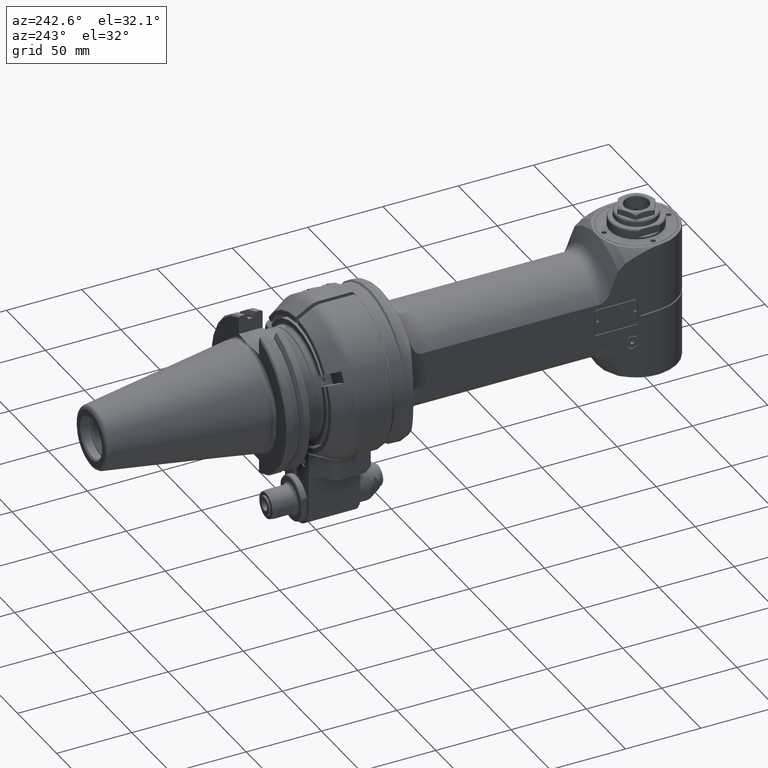
[diagram: clean part render]
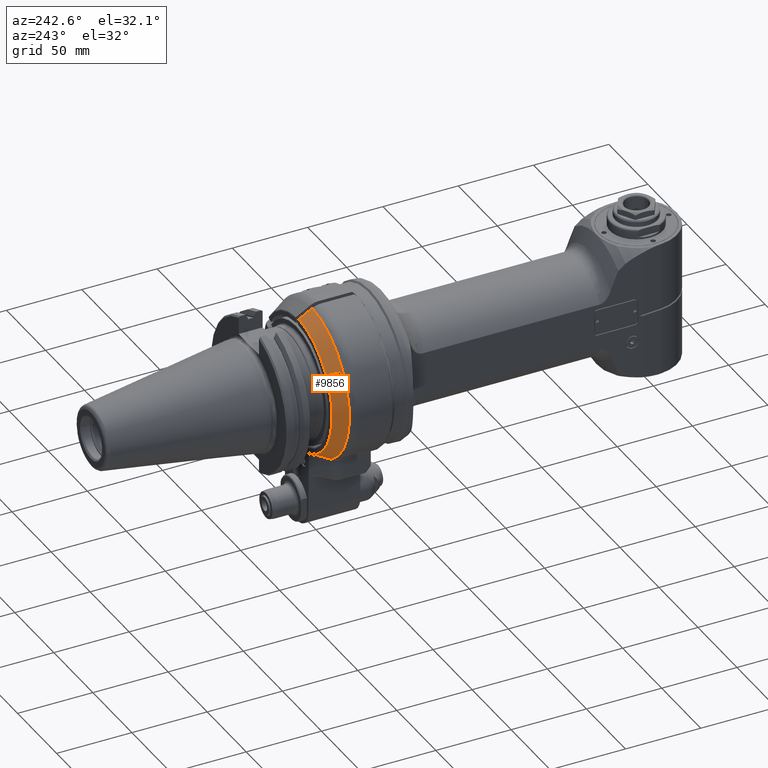
[diagram: same view with one face highlighted and labeled with its STEP entity id]
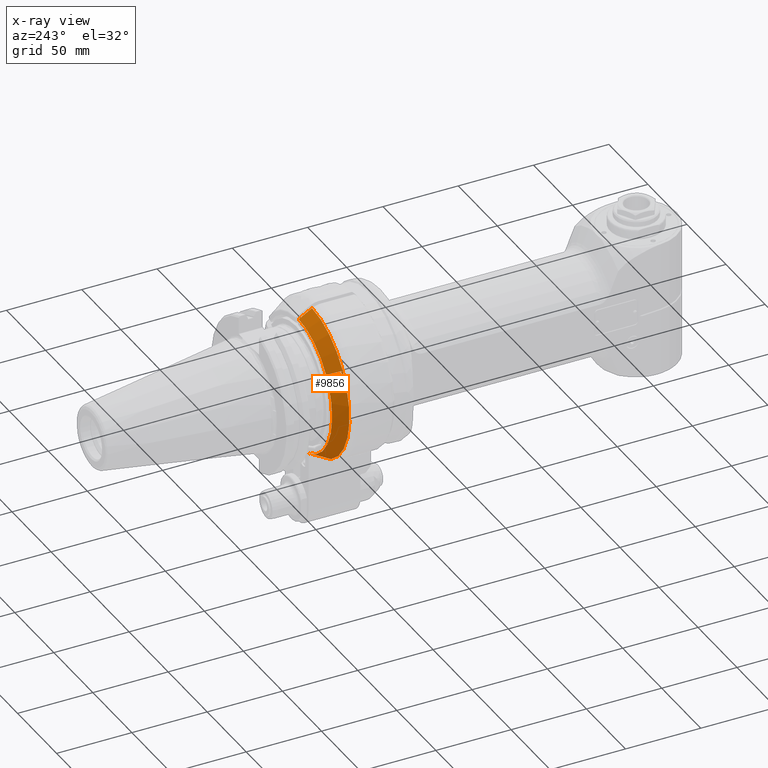
[diagram: x-ray of the same camera — body ghosted, the highlighted face saturated]
A machine part, auxiliary view. The second image highlights one B-rep face of the part: STEP entity #9856.
The next image is the same camera in x-ray: the body ghosted, the highlighted face saturated — about 0% of this face is hidden behind the body in this view.
In plain terms, the highlighted conical surface has half-angle 30 deg.
Its self-contained STEP definition (entity closure, byte-faithful):
#131=CONICAL_SURFACE('',#10899,46.84048999,0.523598775598299);
#376=(
BOUNDED_CURVE()
B_SPLINE_CURVE(2,(#18128,#18129,#18130),.UNSPECIFIED.,.F.,.F.)
B_SPLINE_CURVE_WITH_KNOTS((3,3),(2.8844916698338,4.73034462401095),
 .UNSPECIFIED.)
CURVE()
GEOMETRIC_REPRESENTATION_ITEM()
RATIONAL_B_SPLINE_CURVE((1.0329855543031,1.03049774839129,1.01131829545001))
REPRESENTATION_ITEM('')
);
#468=B_SPLINE_CURVE_WITH_KNOTS('',3,(#18200,#18201,#18202,#18203,#18204,
#18205,#18206,#18207,#18208,#18209),.UNSPECIFIED.,.F.,.F.,(4,3,3,4),(0.,
0.3333333333333,0.6666666666667,0.999997664785423),.UNSPECIFIED.);
#469=B_SPLINE_CURVE_WITH_KNOTS('',3,(#18213,#18214,#18215,#18216,#18217,
#18218,#18219,#18220,#18221,#18222),.UNSPECIFIED.,.F.,.F.,(4,3,3,4),(7.65326635698502E-6,
0.3333333333333,0.6666666666667,1.),.UNSPECIFIED.);
#470=B_SPLINE_CURVE_WITH_KNOTS('',3,(#18226,#18227,#18228,#18229,#18230,
#18231,#18232,#18233,#18234,#18235),.UNSPECIFIED.,.F.,.F.,(4,3,3,4),(0.,
0.3333333333333,0.6666666666667,0.999992871429506),.UNSPECIFIED.);
#1069=CIRCLE('',#10894,49.39230484541);
#1073=CIRCLE('',#10900,44.28867513459);
#1074=CIRCLE('',#10901,48.90747728811);
#1075=CIRCLE('',#10902,44.28867513459);
#1618=FACE_OUTER_BOUND('',#2256,.T.);
#2256=EDGE_LOOP('',(#7804,#7805,#7806,#7807,#7808,#7809,#7810,#7811));
#4441=VERTEX_POINT('',#18066);
#4442=VERTEX_POINT('',#18116);
#4443=VERTEX_POINT('',#18127);
#4448=VERTEX_POINT('',#18199);
#4449=VERTEX_POINT('',#18210);
#4450=VERTEX_POINT('',#18212);
#4451=VERTEX_POINT('',#18223);
#4452=VERTEX_POINT('',#18225);
#5648=EDGE_CURVE('',#4442,#4441,#1069,.T.);
#5649=EDGE_CURVE('',#4441,#4443,#376,.T.);
#5656=EDGE_CURVE('',#4442,#4448,#468,.T.);
#5657=EDGE_CURVE('',#4449,#4448,#1073,.T.);
#5658=EDGE_CURVE('',#4449,#4450,#469,.T.);
#5659=EDGE_CURVE('',#4451,#4450,#1074,.T.);
#5660=EDGE_CURVE('',#4451,#4452,#470,.T.);
#5661=EDGE_CURVE('',#4443,#4452,#1075,.T.);
#7804=ORIENTED_EDGE('',*,*,#5649,.F.);
#7805=ORIENTED_EDGE('',*,*,#5648,.F.);
#7806=ORIENTED_EDGE('',*,*,#5656,.T.);
#7807=ORIENTED_EDGE('',*,*,#5657,.F.);
#7808=ORIENTED_EDGE('',*,*,#5658,.T.);
#7809=ORIENTED_EDGE('',*,*,#5659,.F.);
#7810=ORIENTED_EDGE('',*,*,#5660,.T.);
#7811=ORIENTED_EDGE('',*,*,#5661,.F.);
#9856=ADVANCED_FACE('',(#1618),#131,.T.);
#10894=AXIS2_PLACEMENT_3D('',#18125,#13004,#13005);
#10899=AXIS2_PLACEMENT_3D('',#18198,#13016,#13017);
#10900=AXIS2_PLACEMENT_3D('',#18211,#13018,#13019);
#10901=AXIS2_PLACEMENT_3D('',#18224,#13020,#13021);
#10902=AXIS2_PLACEMENT_3D('',#18236,#13022,#13023);
#13004=DIRECTION('center_axis',(0.,-1.,0.));
#13005=DIRECTION('ref_axis',(-0.0303691031364992,0.,0.999538752412674));
#13016=DIRECTION('center_axis',(0.,-1.,0.));
#13017=DIRECTION('ref_axis',(0.,0.,1.));
#13018=DIRECTION('center_axis',(0.,1.,0.));
#13019=DIRECTION('ref_axis',(-0.823803402997795,0.,0.566875606468697));
#13020=DIRECTION('center_axis',(0.,1.,0.));
#13021=DIRECTION('ref_axis',(-0.899586791598834,0.,0.436742034135616));
#13022=DIRECTION('center_axis',(0.,1.,0.));
#13023=DIRECTION('ref_axis',(-0.317304540867809,0.,-0.948323693864426));
#18066=CARTESIAN_POINT('',(-25.992302278675,30.1602540402174,-42.0000000007194));
#18116=CARTESIAN_POINT('',(-1.50000010664755,30.1602661977814,49.3695157362103));
#18125=CARTESIAN_POINT('Origin',(0.,30.16025403784,0.));
#18127=CARTESIAN_POINT('',(-14.0529977322483,38.9999999987782,-41.9999999997294));
#18128=CARTESIAN_POINT('Ctrl Pts',(-25.9923022780417,30.1602540418529,-42.));
#18129=CARTESIAN_POINT('Ctrl Pts',(-19.6974303641685,35.8978898917393,-42.));
#18130=CARTESIAN_POINT('Ctrl Pts',(-14.0529977324168,38.9999999982381,-42.));
#18198=CARTESIAN_POINT('Origin',(0.,34.58012701892,0.));
#18199=CARTESIAN_POINT('',(-1.49999994161814,39.0000000307715,44.2632663040607));
#18200=CARTESIAN_POINT('Ctrl Pts',(-1.5,30.16027835559,49.36950871544));
#18201=CARTESIAN_POINT('Ctrl Pts',(-1.5,31.18782637832,48.77597982414));
#18202=CARTESIAN_POINT('Ctrl Pts',(-1.5,32.2002823618549,48.1911584726251));
#18203=CARTESIAN_POINT('Ctrl Pts',(-1.5,33.1974165967889,47.6151771630477));
#18204=CARTESIAN_POINT('Ctrl Pts',(-1.5,34.1945508317232,47.0391958534701));
#18205=CARTESIAN_POINT('Ctrl Pts',(-1.5,35.1763633180568,46.4720545858299));
#18206=CARTESIAN_POINT('Ctrl Pts',(-1.5,36.1433969584261,45.9134395747648));
#18207=CARTESIAN_POINT('Ctrl Pts',(-1.5,37.110423824102,45.3548284771577));
#18208=CARTESIAN_POINT('Ctrl Pts',(-1.5,38.0626720508836,44.8047435166621));
#18209=CARTESIAN_POINT('Ctrl Pts',(-1.5,39.0000000311365,44.2632663046978));
#18210=CARTESIAN_POINT('',(-36.485132212909,39.0000574701097,25.1061533734196));
#18211=CARTESIAN_POINT('Origin',(0.,39.,0.));
#18212=CARTESIAN_POINT('',(-40.4965205788,31.,27.42212894174));
#18213=CARTESIAN_POINT('Ctrl Pts',(-36.4851325523632,39.000057527809,25.1061529848536));
#18214=CARTESIAN_POINT('Ctrl Pts',(-36.90282015887,38.1672949652696,25.3473050369074));
#18215=CARTESIAN_POINT('Ctrl Pts',(-37.3297580904974,37.3160041407315,25.5937977666598));
#18216=CARTESIAN_POINT('Ctrl Pts',(-37.7658510311862,36.4463728282836,25.8455761433582));
#18217=CARTESIAN_POINT('Ctrl Pts',(-38.2019539847114,35.5767215488167,26.0973603009704));
#18218=CARTESIAN_POINT('Ctrl Pts',(-38.6472123677067,34.6887289392232,26.3544303482517));
#18219=CARTESIAN_POINT('Ctrl Pts',(-39.1022543421016,33.7811397286214,26.6171489546612));
#18220=CARTESIAN_POINT('Ctrl Pts',(-39.5572963164965,32.8735505180199,26.8798675610706));
#18221=CARTESIAN_POINT('Ctrl Pts',(-40.022121882291,31.94636470641,27.1482347266083));
#18222=CARTESIAN_POINT('Ctrl Pts',(-40.4965205787996,31.,27.4221289417408));
#18223=CARTESIAN_POINT('',(-43.9965205788,31.,21.35995111525));
#18224=CARTESIAN_POINT('Origin',(0.,31.,0.));
#18225=CARTESIAN_POINT('',(-39.9851346518319,39.0000535829503,19.0439758254264));
#18226=CARTESIAN_POINT('Ctrl Pts',(-43.9965205787991,31.,21.3599511152515));
#18227=CARTESIAN_POINT('Ctrl Pts',(-43.5225765275803,31.94545774722,21.0863193896995));
#18228=CARTESIAN_POINT('Ctrl Pts',(-43.0580534965759,32.8720402012599,20.8181268927043));
#18229=CARTESIAN_POINT('Ctrl Pts',(-42.6031489800003,33.7793553575531,20.5554876476037));
#18230=CARTESIAN_POINT('Ctrl Pts',(-42.1482444634245,34.6866705138466,20.2928484025031));
#18231=CARTESIAN_POINT('Ctrl Pts',(-41.7029584612776,35.5747183723934,20.0357624092972));
#18232=CARTESIAN_POINT('Ctrl Pts',(-41.2667014678749,36.4446769365969,19.7838893167203));
#18233=CARTESIAN_POINT('Ctrl Pts',(-40.8304538041385,37.3146168961173,19.5320216106288));
#18234=CARTESIAN_POINT('Ctrl Pts',(-40.403234762967,38.1664683349909,19.2853665822054));
#18235=CARTESIAN_POINT('Ctrl Pts',(-39.9851344961692,39.0000536366571,19.0439762806215));
#18236=CARTESIAN_POINT('Origin',(0.,39.,0.));